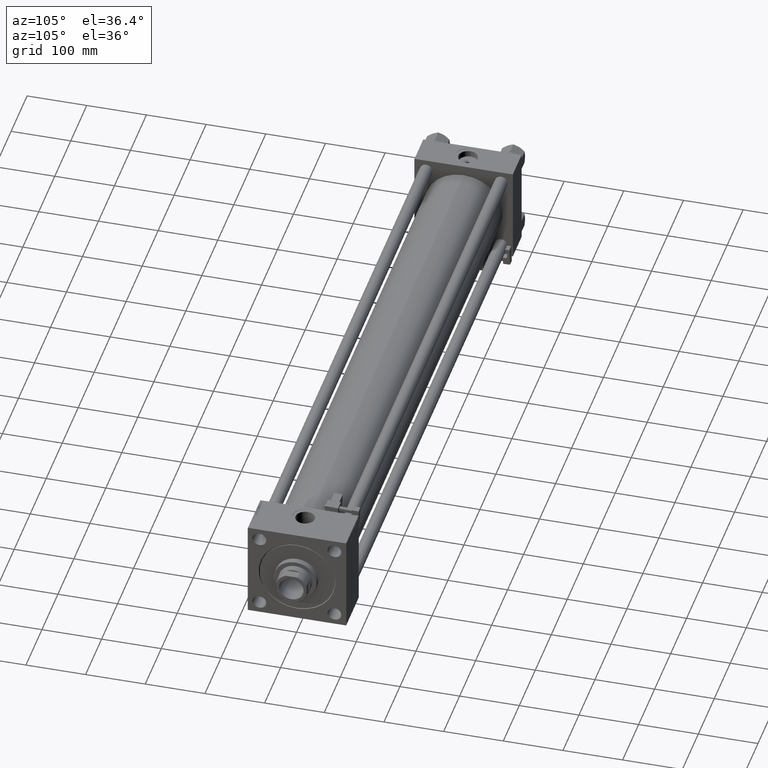
[diagram: clean part render]
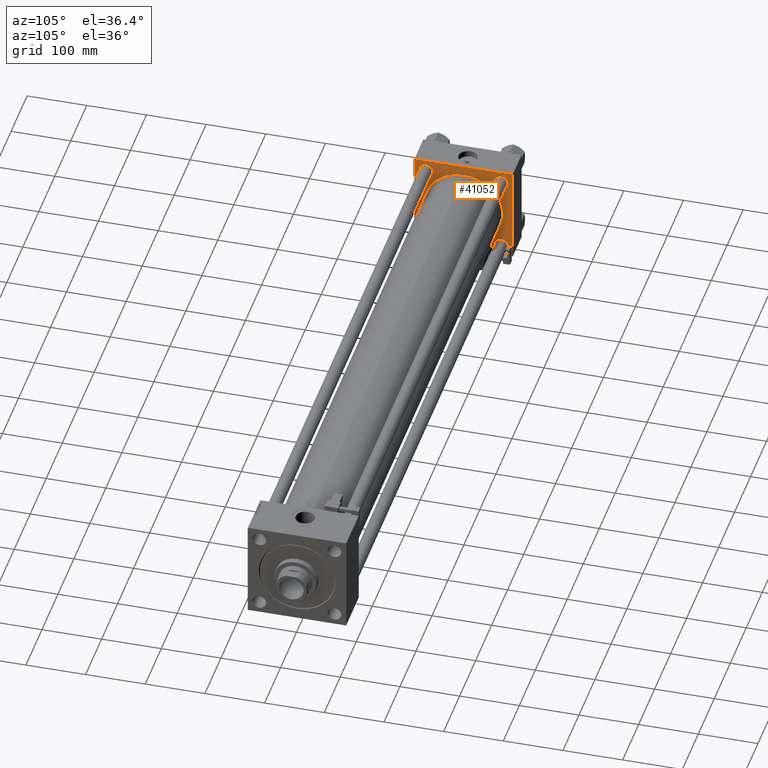
[diagram: same view with one face highlighted and labeled with its STEP entity id]
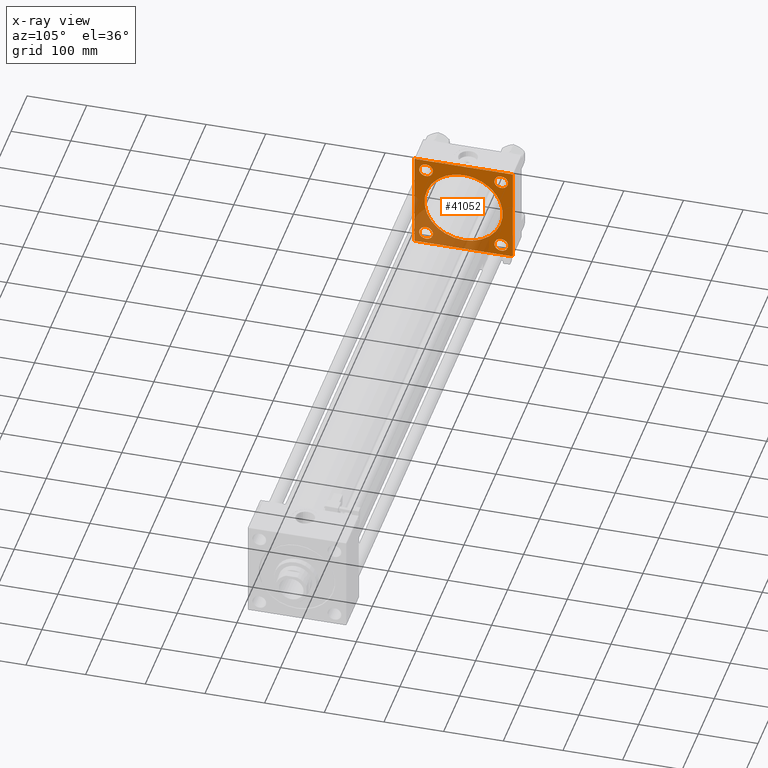
[diagram: x-ray of the same camera — body ghosted, the highlighted face saturated]
A machine part, auxiliary view. The second image highlights one B-rep face of the part: STEP entity #41052.
The next image is the same camera in x-ray: the body ghosted, the highlighted face saturated — about 30% of this face is hidden behind the body in this view.
In plain terms, the highlighted planar face has unit normal (-1, 0, 0).
Its self-contained STEP definition (entity closure, byte-faithful):
#293 = ORIENTED_EDGE ( 'NONE', *, *, #7697, .F. ) ;
#384 = ORIENTED_EDGE ( 'NONE', *, *, #4236, .T. ) ;
#503 = LINE ( 'NONE', #29408, #2954 ) ;
#1081 = VERTEX_POINT ( 'NONE', #12641 ) ;
#1939 = CARTESIAN_POINT ( 'NONE',  ( 55.00000000000000000, -82.00000000000000000, -82.50000000000000000 ) ) ;
#2325 = CARTESIAN_POINT ( 'NONE',  ( 55.00000000000004974, 5.419351320449954973E-15, -65.50000000000001421 ) ) ;
#2709 = CIRCLE ( 'NONE', #13823, 11.50000000000017764 ) ;
#2954 = VECTOR ( 'NONE', #37443, 1000.000000000000000 ) ;
#3097 = ORIENTED_EDGE ( 'NONE', *, *, #28672, .T. ) ;
#3248 = AXIS2_PLACEMENT_3D ( 'NONE', #27795, #3418, #44371 ) ;
#3418 = DIRECTION ( 'NONE',  ( -1.000000000000000000, 0.000000000000000000, 0.000000000000000000 ) ) ;
#3631 = AXIS2_PLACEMENT_3D ( 'NONE', #33256, #16133, #41563 ) ;
#3720 = VERTEX_POINT ( 'NONE', #28588 ) ;
#4236 = EDGE_CURVE ( 'NONE', #4443, #29923, #2709, .T. ) ;
#4385 = AXIS2_PLACEMENT_3D ( 'NONE', #10329, #38980, #26661 ) ;
#4443 = VERTEX_POINT ( 'NONE', #45019 ) ;
#4472 = CARTESIAN_POINT ( 'NONE',  ( 55.00000000000000000, -82.00000000000000000, -82.50000000000000000 ) ) ;
#4682 = DIRECTION ( 'NONE',  ( -1.000000000000000000, 0.000000000000000000, 0.000000000000000000 ) ) ;
#4806 = VERTEX_POINT ( 'NONE', #45216 ) ;
#5164 = DIRECTION ( 'NONE',  ( 0.000000000000000000, 0.000000000000000000, 1.000000000000000000 ) ) ;
#5714 = LINE ( 'NONE', #42406, #32889 ) ;
#6177 = CIRCLE ( 'NONE', #3631, 11.50000000000017764 ) ;
#6516 = LINE ( 'NONE', #22861, #45869 ) ;
#7020 = CARTESIAN_POINT ( 'NONE',  ( 55.00000000000000000, 62.95000000000000284, 62.95000000000000284 ) ) ;
#7081 = ORIENTED_EDGE ( 'NONE', *, *, #14531, .T. ) ;
#7697 = EDGE_CURVE ( 'NONE', #52022, #11777, #31107, .T. ) ;
#8218 = DIRECTION ( 'NONE',  ( 0.000000000000000000, 0.000000000000000000, 1.000000000000000000 ) ) ;
#8678 = VERTEX_POINT ( 'NONE', #51994 ) ;
#8830 = ORIENTED_EDGE ( 'NONE', *, *, #23373, .F. ) ;
#9503 = EDGE_CURVE ( 'NONE', #40609, #11777, #30333, .T. ) ;
#9754 = CARTESIAN_POINT ( 'NONE',  ( 55.00000000000000000, -62.94999999999998153, -62.95000000000001705 ) ) ;
#10329 = CARTESIAN_POINT ( 'NONE',  ( 55.00000000000000000, -62.94999999999998153, 62.95000000000001705 ) ) ;
#10520 = VERTEX_POINT ( 'NONE', #51549 ) ;
#10604 = EDGE_CURVE ( 'NONE', #34815, #12262, #27847, .T. ) ;
#11078 = VECTOR ( 'NONE', #41454, 1000.000000000000000 ) ;
#11413 = DIRECTION ( 'NONE',  ( -1.000000000000000000, 0.000000000000000000, 0.000000000000000000 ) ) ;
#11775 = CARTESIAN_POINT ( 'NONE',  ( 55.00000000000000000, 82.00000000000005684, 82.50000000000002842 ) ) ;
#11777 = VERTEX_POINT ( 'NONE', #4472 ) ;
#11931 = EDGE_CURVE ( 'NONE', #29923, #4443, #24264, .T. ) ;
#11950 = ORIENTED_EDGE ( 'NONE', *, *, #22632, .T. ) ;
#12220 = VECTOR ( 'NONE', #15565, 1000.000000000000000 ) ;
#12262 = VERTEX_POINT ( 'NONE', #33521 ) ;
#12641 = CARTESIAN_POINT ( 'NONE',  ( 55.00000000000000000, 82.50000000000002842, -82.00000000000000000 ) ) ;
#13018 = ORIENTED_EDGE ( 'NONE', *, *, #20702, .T. ) ;
#13406 = LINE ( 'NONE', #41258, #44038 ) ;
#13823 = AXIS2_PLACEMENT_3D ( 'NONE', #48486, #31642, #43683 ) ;
#14095 = CIRCLE ( 'NONE', #30350, 11.50000000000017764 ) ;
#14118 = EDGE_CURVE ( 'NONE', #4806, #23824, #28604, .T. ) ;
#14264 = DIRECTION ( 'NONE',  ( -1.000000000000000000, 0.000000000000000000, 0.000000000000000000 ) ) ;
#14531 = EDGE_CURVE ( 'NONE', #10520, #18734, #5714, .T. ) ;
#15357 = DIRECTION ( 'NONE',  ( 0.000000000000000000, -1.682156097916903588E-16, -1.000000000000000000 ) ) ;
#15565 = DIRECTION ( 'NONE',  ( 0.000000000000000000, -1.000000000000000000, -1.682156097916903588E-16 ) ) ;
#15654 = CARTESIAN_POINT ( 'NONE',  ( 55.00000000000000000, 82.50000000000002842, 82.00000000000005684 ) ) ;
#15740 = EDGE_CURVE ( 'NONE', #18734, #40609, #6516, .T. ) ;
#16133 = DIRECTION ( 'NONE',  ( -1.000000000000000000, 0.000000000000000000, 0.000000000000000000 ) ) ;
#16201 = ORIENTED_EDGE ( 'NONE', *, *, #15740, .T. ) ;
#16734 = ORIENTED_EDGE ( 'NONE', *, *, #40376, .F. ) ;
#17160 = EDGE_CURVE ( 'NONE', #8678, #36966, #49689, .T. ) ;
#17383 = CIRCLE ( 'NONE', #43919, 11.50000000000017764 ) ;
#17496 = VERTEX_POINT ( 'NONE', #32991 ) ;
#18734 = VERTEX_POINT ( 'NONE', #33727 ) ;
#19178 = VECTOR ( 'NONE', #31609, 1000.000000000000114 ) ;
#19947 = CARTESIAN_POINT ( 'NONE',  ( 55.00000000000000000, 62.95000000000000284, -62.95000000000000284 ) ) ;
#20081 = EDGE_LOOP ( 'NONE', ( #31452, #11950 ) ) ;
#20382 = AXIS2_PLACEMENT_3D ( 'NONE', #26574, #14264, #5164 ) ;
#20702 = EDGE_CURVE ( 'NONE', #36966, #8678, #6177, .T. ) ;
#21775 = FACE_BOUND ( 'NONE', #42280, .T. ) ;
#21778 = AXIS2_PLACEMENT_3D ( 'NONE', #24293, #24807, #8218 ) ;
#22045 = VERTEX_POINT ( 'NONE', #47819 ) ;
#22632 = EDGE_CURVE ( 'NONE', #22045, #3720, #17383, .T. ) ;
#22861 = CARTESIAN_POINT ( 'NONE',  ( 55.00000000000000000, -82.49999999999997158, 82.50000000000001421 ) ) ;
#23373 = EDGE_CURVE ( 'NONE', #23824, #4806, #48245, .T. ) ;
#23824 = VERTEX_POINT ( 'NONE', #2325 ) ;
#24264 = CIRCLE ( 'NONE', #36215, 11.50000000000017764 ) ;
#24279 = ORIENTED_EDGE ( 'NONE', *, *, #14118, .F. ) ;
#24293 = CARTESIAN_POINT ( 'NONE',  ( 55.00000000000004974, -2.602085213965210642E-15, 0.000000000000000000 ) ) ;
#24517 = CARTESIAN_POINT ( 'NONE',  ( 55.00000000000000000, 62.95000000000000284, 51.44999999999983231 ) ) ;
#24640 = CARTESIAN_POINT ( 'NONE',  ( 55.00000000000004974, -2.602085213965210642E-15, 0.000000000000000000 ) ) ;
#24807 = DIRECTION ( 'NONE',  ( 1.000000000000000000, -0.000000000000000000, -0.000000000000000000 ) ) ;
#25346 = EDGE_CURVE ( 'NONE', #12262, #10520, #503, .T. ) ;
#25915 = AXIS2_PLACEMENT_3D ( 'NONE', #9754, #4682, #41632 ) ;
#26574 = CARTESIAN_POINT ( 'NONE',  ( 55.00000000000000000, 0.000000000000000000, 0.000000000000000000 ) ) ;
#26575 = DIRECTION ( 'NONE',  ( -1.000000000000000000, 0.000000000000000000, 0.000000000000000000 ) ) ;
#26661 = DIRECTION ( 'NONE',  ( 0.000000000000000000, 0.000000000000000000, 1.000000000000000000 ) ) ;
#26824 = VECTOR ( 'NONE', #50678, 999.9999999999998863 ) ;
#27603 = CIRCLE ( 'NONE', #25915, 11.50000000000017764 ) ;
#27795 = CARTESIAN_POINT ( 'NONE',  ( 55.00000000000000000, 62.95000000000000284, 62.95000000000000284 ) ) ;
#27847 = LINE ( 'NONE', #11775, #19178 ) ;
#28241 = DIRECTION ( 'NONE',  ( 0.000000000000000000, 0.000000000000000000, 1.000000000000000000 ) ) ;
#28368 = EDGE_CURVE ( 'NONE', #50791, #17496, #14095, .T. ) ;
#28588 = CARTESIAN_POINT ( 'NONE',  ( 55.00000000000000000, -62.94999999999998153, -74.45000000000020179 ) ) ;
#28604 = CIRCLE ( 'NONE', #21778, 65.50000000000001421 ) ;
#28672 = EDGE_CURVE ( 'NONE', #52022, #1081, #13406, .T. ) ;
#29408 = CARTESIAN_POINT ( 'NONE',  ( 55.00000000000000000, 82.50000000000002842, 82.50000000000002842 ) ) ;
#29916 = LINE ( 'NONE', #33944, #11078 ) ;
#29923 = VERTEX_POINT ( 'NONE', #44419 ) ;
#30333 = LINE ( 'NONE', #1939, #26824 ) ;
#30350 = AXIS2_PLACEMENT_3D ( 'NONE', #7020, #26575, #42906 ) ;
#30597 = FACE_BOUND ( 'NONE', #45374, .T. ) ;
#30866 = FACE_BOUND ( 'NONE', #37445, .T. ) ;
#31107 = LINE ( 'NONE', #47441, #12220 ) ;
#31452 = ORIENTED_EDGE ( 'NONE', *, *, #52626, .T. ) ;
#31565 = DIRECTION ( 'NONE',  ( -1.000000000000000000, 0.000000000000000000, 0.000000000000000000 ) ) ;
#31592 = ORIENTED_EDGE ( 'NONE', *, *, #17160, .T. ) ;
#31609 = DIRECTION ( 'NONE',  ( 0.000000000000000000, -0.7071067811865474617, 0.7071067811865474617 ) ) ;
#31642 = DIRECTION ( 'NONE',  ( -1.000000000000000000, 0.000000000000000000, 0.000000000000000000 ) ) ;
#32401 = DIRECTION ( 'NONE',  ( 0.000000000000000000, 0.000000000000000000, 1.000000000000000000 ) ) ;
#32829 = AXIS2_PLACEMENT_3D ( 'NONE', #24640, #49006, #32401 ) ;
#32889 = VECTOR ( 'NONE', #34094, 1000.000000000000114 ) ;
#32991 = CARTESIAN_POINT ( 'NONE',  ( 55.00000000000000000, 62.95000000000000284, 74.45000000000018758 ) ) ;
#33256 = CARTESIAN_POINT ( 'NONE',  ( 55.00000000000000000, -62.94999999999998153, 62.95000000000001705 ) ) ;
#33521 = CARTESIAN_POINT ( 'NONE',  ( 55.00000000000000000, 82.00000000000005684, 82.50000000000002842 ) ) ;
#33541 = ORIENTED_EDGE ( 'NONE', *, *, #9503, .T. ) ;
#33727 = CARTESIAN_POINT ( 'NONE',  ( 55.00000000000000000, -82.49999999999997158, 82.00000000000001421 ) ) ;
#33944 = CARTESIAN_POINT ( 'NONE',  ( 55.00000000000000000, 82.50000000000002842, 82.50000000000002842 ) ) ;
#34094 = DIRECTION ( 'NONE',  ( -0.000000000000000000, -0.7071067811865474617, -0.7071067811865474617 ) ) ;
#34144 = ORIENTED_EDGE ( 'NONE', *, *, #25346, .T. ) ;
#34815 = VERTEX_POINT ( 'NONE', #15654 ) ;
#36215 = AXIS2_PLACEMENT_3D ( 'NONE', #19947, #11413, #28241 ) ;
#36342 = EDGE_CURVE ( 'NONE', #17496, #50791, #48565, .T. ) ;
#36966 = VERTEX_POINT ( 'NONE', #37990 ) ;
#37443 = DIRECTION ( 'NONE',  ( 0.000000000000000000, -1.000000000000000000, -8.410780489584519171E-17 ) ) ;
#37445 = EDGE_LOOP ( 'NONE', ( #24279, #8830 ) ) ;
#37990 = CARTESIAN_POINT ( 'NONE',  ( 55.00000000000000000, -62.94999999999998153, 74.45000000000020179 ) ) ;
#38101 = PLANE ( 'NONE',  #20382 ) ;
#38793 = CARTESIAN_POINT ( 'NONE',  ( 55.00000000000000000, -62.94999999999998153, -62.95000000000001705 ) ) ;
#38980 = DIRECTION ( 'NONE',  ( -1.000000000000000000, 0.000000000000000000, 0.000000000000000000 ) ) ;
#39130 = EDGE_LOOP ( 'NONE', ( #48362, #40130 ) ) ;
#40130 = ORIENTED_EDGE ( 'NONE', *, *, #36342, .T. ) ;
#40376 = EDGE_CURVE ( 'NONE', #34815, #1081, #29916, .T. ) ;
#40609 = VERTEX_POINT ( 'NONE', #48887 ) ;
#40976 = EDGE_LOOP ( 'NONE', ( #293, #3097, #16734, #51393, #34144, #7081, #16201, #33541 ) ) ;
#41052 = ADVANCED_FACE ( 'NONE', ( #50949, #30597, #21775, #46665, #30866, #41852 ), #38101, .F. ) ;
#41258 = CARTESIAN_POINT ( 'NONE',  ( 55.00000000000000000, 82.50000000000002842, -82.00000000000000000 ) ) ;
#41454 = DIRECTION ( 'NONE',  ( 0.000000000000000000, 0.000000000000000000, -1.000000000000000000 ) ) ;
#41563 = DIRECTION ( 'NONE',  ( 0.000000000000000000, 0.000000000000000000, 1.000000000000000000 ) ) ;
#41632 = DIRECTION ( 'NONE',  ( 0.000000000000000000, 0.000000000000000000, 1.000000000000000000 ) ) ;
#41852 = FACE_OUTER_BOUND ( 'NONE', #40976, .T. ) ;
#42280 = EDGE_LOOP ( 'NONE', ( #31592, #13018 ) ) ;
#42406 = CARTESIAN_POINT ( 'NONE',  ( 55.00000000000000000, -82.49999999999997158, 82.00000000000001421 ) ) ;
#42906 = DIRECTION ( 'NONE',  ( 0.000000000000000000, 0.000000000000000000, 1.000000000000000000 ) ) ;
#43683 = DIRECTION ( 'NONE',  ( 0.000000000000000000, 0.000000000000000000, 1.000000000000000000 ) ) ;
#43919 = AXIS2_PLACEMENT_3D ( 'NONE', #38793, #31565, #46823 ) ;
#44038 = VECTOR ( 'NONE', #45801, 1000.000000000000114 ) ;
#44371 = DIRECTION ( 'NONE',  ( 0.000000000000000000, 0.000000000000000000, 1.000000000000000000 ) ) ;
#44419 = CARTESIAN_POINT ( 'NONE',  ( 55.00000000000000000, 62.95000000000000284, -74.45000000000018758 ) ) ;
#45019 = CARTESIAN_POINT ( 'NONE',  ( 55.00000000000000000, 62.95000000000000284, -51.44999999999983231 ) ) ;
#45216 = CARTESIAN_POINT ( 'NONE',  ( 55.00000000000004974, -2.602085213965210642E-15, 65.50000000000001421 ) ) ;
#45374 = EDGE_LOOP ( 'NONE', ( #46607, #384 ) ) ;
#45801 = DIRECTION ( 'NONE',  ( -0.000000000000000000, 0.7071067811865474617, 0.7071067811865474617 ) ) ;
#45869 = VECTOR ( 'NONE', #15357, 1000.000000000000000 ) ;
#46607 = ORIENTED_EDGE ( 'NONE', *, *, #11931, .T. ) ;
#46665 = FACE_BOUND ( 'NONE', #39130, .T. ) ;
#46823 = DIRECTION ( 'NONE',  ( 0.000000000000000000, 0.000000000000000000, 1.000000000000000000 ) ) ;
#47441 = CARTESIAN_POINT ( 'NONE',  ( 55.00000000000000000, 82.50000000000002842, -82.49999999999997158 ) ) ;
#47819 = CARTESIAN_POINT ( 'NONE',  ( 55.00000000000000000, -62.94999999999998153, -51.44999999999984652 ) ) ;
#48245 = CIRCLE ( 'NONE', #32829, 65.50000000000001421 ) ;
#48362 = ORIENTED_EDGE ( 'NONE', *, *, #28368, .T. ) ;
#48486 = CARTESIAN_POINT ( 'NONE',  ( 55.00000000000000000, 62.95000000000000284, -62.95000000000000284 ) ) ;
#48565 = CIRCLE ( 'NONE', #3248, 11.50000000000017764 ) ;
#48887 = CARTESIAN_POINT ( 'NONE',  ( 55.00000000000000000, -82.50000000000000000, -81.99999999999998579 ) ) ;
#49006 = DIRECTION ( 'NONE',  ( 1.000000000000000000, -0.000000000000000000, -0.000000000000000000 ) ) ;
#49689 = CIRCLE ( 'NONE', #4385, 11.50000000000017764 ) ;
#50678 = DIRECTION ( 'NONE',  ( 0.000000000000000000, 0.7071067811865376918, -0.7071067811865574537 ) ) ;
#50791 = VERTEX_POINT ( 'NONE', #24517 ) ;
#50949 = FACE_BOUND ( 'NONE', #20081, .T. ) ;
#51393 = ORIENTED_EDGE ( 'NONE', *, *, #10604, .T. ) ;
#51549 = CARTESIAN_POINT ( 'NONE',  ( 55.00000000000000000, -81.99999999999997158, 82.50000000000001421 ) ) ;
#51973 = CARTESIAN_POINT ( 'NONE',  ( 55.00000000000000000, 82.00000000000005684, -82.49999999999997158 ) ) ;
#51994 = CARTESIAN_POINT ( 'NONE',  ( 55.00000000000000000, -62.94999999999998153, 51.44999999999984652 ) ) ;
#52022 = VERTEX_POINT ( 'NONE', #51973 ) ;
#52626 = EDGE_CURVE ( 'NONE', #3720, #22045, #27603, .T. ) ;